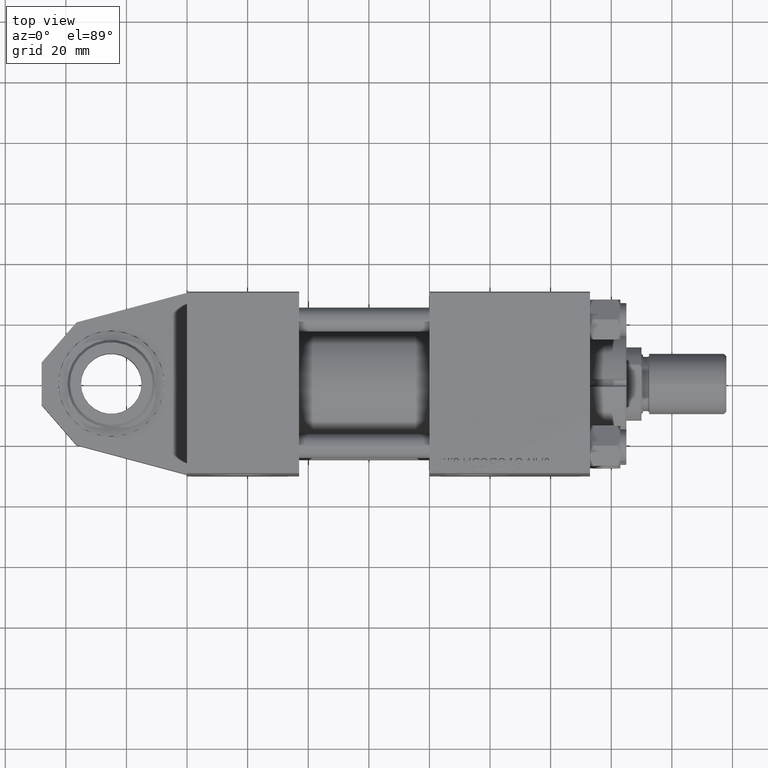
[diagram: clean part render]
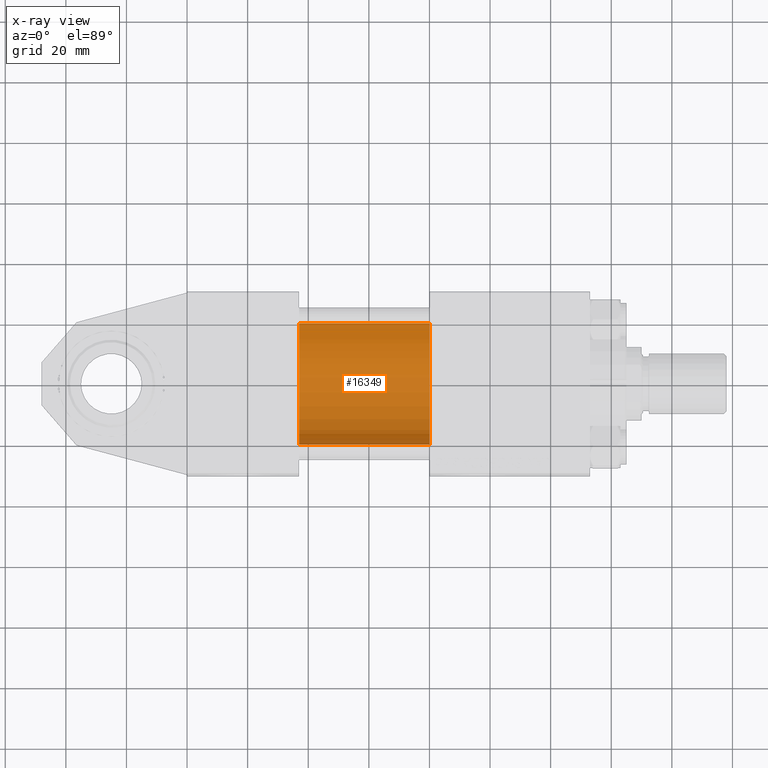
[diagram: x-ray — body ghosted, one internal face saturated and labeled with its STEP entity id]
A machine part, top view, then the same camera in x-ray: the body is ghosted and one INTERNAL B-rep face — a face not visible from any outside direction — is saturated and labeled: STEP entity #16349.
In plain terms, the highlighted cylindrical surface (partial cylindrical patch) has radius 20 mm, axis along (-1, 0, -0).
Its self-contained STEP definition (entity closure, byte-faithful):
#3234 = AXIS2_PLACEMENT_3D ( 'NONE', #32426, #12442, #28833 ) ;
#4169 = AXIS2_PLACEMENT_3D ( 'NONE', #10985, #18417, #33813 ) ;
#4873 = VERTEX_POINT ( 'NONE', #49416 ) ;
#5122 = CARTESIAN_POINT ( 'NONE',  ( 79.99999999999998579, -1.527916156705042519E-16, -20.00000000000000000 ) ) ;
#6521 = EDGE_CURVE ( 'NONE', #4873, #12320, #24582, .T. ) ;
#10262 = DIRECTION ( 'NONE',  ( 1.000000000000000000, 0.000000000000000000, 0.000000000000000000 ) ) ;
#10985 = CARTESIAN_POINT ( 'NONE',  ( 79.99999999999998579, -2.602085213965210642E-15, 0.000000000000000000 ) ) ;
#12320 = VERTEX_POINT ( 'NONE', #33353 ) ;
#12442 = DIRECTION ( 'NONE',  ( 1.000000000000000000, 0.000000000000000000, 0.000000000000000000 ) ) ;
#14720 = LINE ( 'NONE', #37559, #40596 ) ;
#15238 = ORIENTED_EDGE ( 'NONE', *, *, #43014, .F. ) ;
#15670 = ORIENTED_EDGE ( 'NONE', *, *, #6521, .T. ) ;
#16349 = ADVANCED_FACE ( 'NONE', ( #42545 ), #34306, .F. ) ;
#16693 = ORIENTED_EDGE ( 'NONE', *, *, #34459, .F. ) ;
#18092 = AXIS2_PLACEMENT_3D ( 'NONE', #40565, #10262, #32834 ) ;
#18417 = DIRECTION ( 'NONE',  ( -1.000000000000000000, -0.000000000000000000, -0.000000000000000000 ) ) ;
#18909 = CIRCLE ( 'NONE', #18092, 20.00000000000000000 ) ;
#19202 = ORIENTED_EDGE ( 'NONE', *, *, #46821, .T. ) ;
#21237 = CARTESIAN_POINT ( 'NONE',  ( 79.99999999999998579, -2.602085213965210642E-15, 20.00000000000000000 ) ) ;
#22910 = DIRECTION ( 'NONE',  ( -1.000000000000000000, -0.000000000000000000, -0.000000000000000000 ) ) ;
#24582 = LINE ( 'NONE', #5122, #25612 ) ;
#25612 = VECTOR ( 'NONE', #44381, 1000.000000000000000 ) ;
#28833 = DIRECTION ( 'NONE',  ( 0.000000000000000000, 0.000000000000000000, -1.000000000000000000 ) ) ;
#32426 = CARTESIAN_POINT ( 'NONE',  ( 37.00000000000000000, -2.602085213965210642E-15, 0.000000000000000000 ) ) ;
#32834 = DIRECTION ( 'NONE',  ( 0.000000000000000000, 0.000000000000000000, -1.000000000000000000 ) ) ;
#32909 = VERTEX_POINT ( 'NONE', #21237 ) ;
#33353 = CARTESIAN_POINT ( 'NONE',  ( 37.00000000000000000, -1.527916156705042519E-16, -20.00000000000000000 ) ) ;
#33813 = DIRECTION ( 'NONE',  ( 0.000000000000000000, 0.000000000000000000, 1.000000000000000000 ) ) ;
#34306 = CYLINDRICAL_SURFACE ( 'NONE', #4169, 20.00000000000000000 ) ;
#34459 = EDGE_CURVE ( 'NONE', #32909, #39081, #14720, .T. ) ;
#34517 = CARTESIAN_POINT ( 'NONE',  ( 37.00000000000000000, -2.602085213965210642E-15, 20.00000000000000000 ) ) ;
#37143 = EDGE_LOOP ( 'NONE', ( #19202, #15670, #15238, #16693 ) ) ;
#37559 = CARTESIAN_POINT ( 'NONE',  ( 79.99999999999998579, -2.602085213965210642E-15, 20.00000000000000000 ) ) ;
#39081 = VERTEX_POINT ( 'NONE', #34517 ) ;
#40128 = CIRCLE ( 'NONE', #3234, 20.00000000000000000 ) ;
#40565 = CARTESIAN_POINT ( 'NONE',  ( 79.99999999999998579, -2.602085213965210642E-15, 0.000000000000000000 ) ) ;
#40596 = VECTOR ( 'NONE', #22910, 1000.000000000000000 ) ;
#42545 = FACE_OUTER_BOUND ( 'NONE', #37143, .T. ) ;
#43014 = EDGE_CURVE ( 'NONE', #39081, #12320, #40128, .T. ) ;
#44381 = DIRECTION ( 'NONE',  ( -1.000000000000000000, -0.000000000000000000, -0.000000000000000000 ) ) ;
#46821 = EDGE_CURVE ( 'NONE', #32909, #4873, #18909, .T. ) ;
#49416 = CARTESIAN_POINT ( 'NONE',  ( 79.99999999999998579, -1.527916156705042519E-16, -20.00000000000000000 ) ) ;